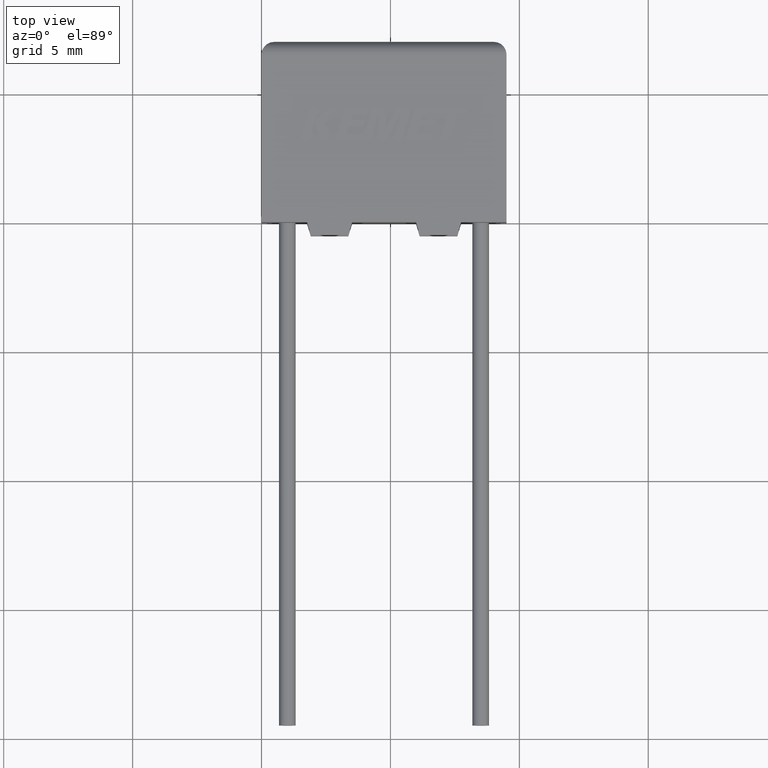
[diagram: clean part render]
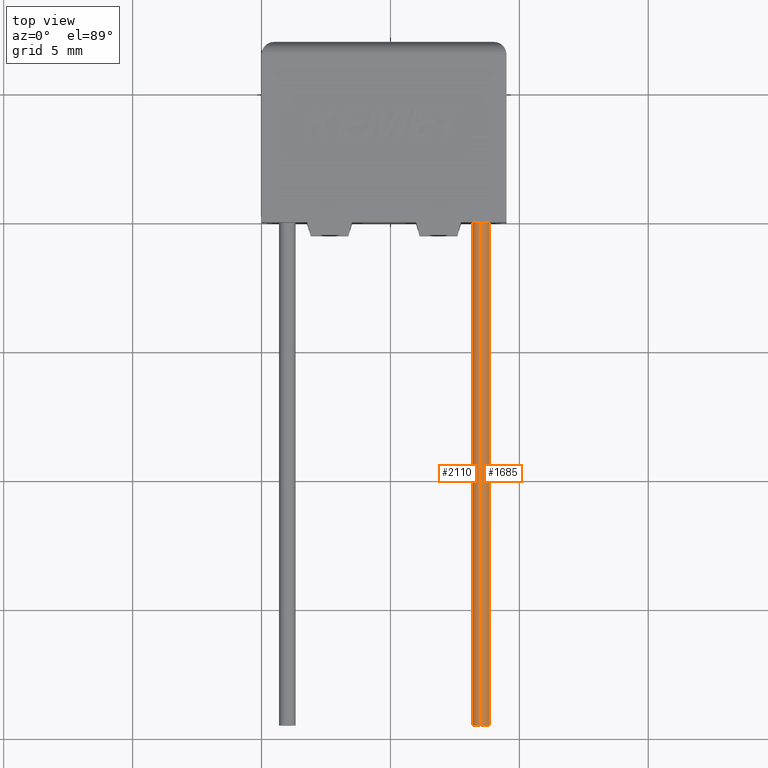
[diagram: same view with one multi-face feature highlighted, each face labeled with its STEP entity id]
A machine part, top view. The highlighted faces form ONE feature: a constant-radius fillet chain: 2 tangent blend faces with common blend radius 0.325 mm. The faces share edges in the B-rep.
Their STEP definitions:
[1] entity #2110 (Cylinder):
#29 = LINE ( 'NONE', #1719, #529 ) ;
#36 = CARTESIAN_POINT ( 'NONE',  ( 8.500000000000000000, -19.50000000000000000, 1.749999999999999800 ) ) ;
#227 = CIRCLE ( 'NONE', #1667, 0.3250000000000000100 ) ;
#430 = ORIENTED_EDGE ( 'NONE', *, *, #955, .F. ) ;
#501 = EDGE_LOOP ( 'NONE', ( #430, #1018, #2680, #746 ) ) ;
#529 = VECTOR ( 'NONE', #1282, 1000.000000000000000 ) ;
#568 = DIRECTION ( 'NONE',  ( 0.0000000000000000000, 0.0000000000000000000, -1.000000000000000000 ) ) ;
#624 = VERTEX_POINT ( 'NONE', #774 ) ;
#710 = VECTOR ( 'NONE', #1493, 1000.000000000000000 ) ;
#746 = ORIENTED_EDGE ( 'NONE', *, *, #2997, .F. ) ;
#774 = CARTESIAN_POINT ( 'NONE',  ( 8.500000000000000000, -19.50000000000000000, 2.074999999999999700 ) ) ;
#797 = DIRECTION ( 'NONE',  ( -0.0000000000000000000, 1.000000000000000000, -0.0000000000000000000 ) ) ;
#814 = DIRECTION ( 'NONE',  ( -0.0000000000000000000, 1.000000000000000000, -0.0000000000000000000 ) ) ;
#955 = EDGE_CURVE ( 'NONE', #1399, #1769, #1572, .T. ) ;
#997 = AXIS2_PLACEMENT_3D ( 'NONE', #1564, #2333, #2794 ) ;
#1018 = ORIENTED_EDGE ( 'NONE', *, *, #1376, .T. ) ;
#1238 = CARTESIAN_POINT ( 'NONE',  ( 8.500000000000000000, -19.50000000000000000, 1.424999999999999800 ) ) ;
#1261 = CARTESIAN_POINT ( 'NONE',  ( 8.500000000000000000, 0.0000000000000000000, 1.424999999999999800 ) ) ;
#1282 = DIRECTION ( 'NONE',  ( -0.0000000000000000000, 1.000000000000000000, -0.0000000000000000000 ) ) ;
#1376 = EDGE_CURVE ( 'NONE', #1399, #624, #2605, .T. ) ;
#1399 = VERTEX_POINT ( 'NONE', #2163 ) ;
#1435 = AXIS2_PLACEMENT_3D ( 'NONE', #36, #797, #1812 ) ;
#1452 = CYLINDRICAL_SURFACE ( 'NONE', #997, 0.3249999999999997900 ) ;
#1491 = VERTEX_POINT ( 'NONE', #2699 ) ;
#1493 = DIRECTION ( 'NONE',  ( -0.0000000000000000000, 1.000000000000000000, -0.0000000000000000000 ) ) ;
#1564 = CARTESIAN_POINT ( 'NONE',  ( 8.500000000000000000, -19.50000000000000000, 1.749999999999999800 ) ) ;
#1572 = LINE ( 'NONE', #1238, #710 ) ;
#1667 = AXIS2_PLACEMENT_3D ( 'NONE', #3052, #814, #568 ) ;
#1719 = CARTESIAN_POINT ( 'NONE',  ( 8.500000000000000000, -19.50000000000000000, 2.074999999999999700 ) ) ;
#1769 = VERTEX_POINT ( 'NONE', #1261 ) ;
#1812 = DIRECTION ( 'NONE',  ( 0.0000000000000000000, 0.0000000000000000000, -1.000000000000000000 ) ) ;
#2110 = ADVANCED_FACE ( 'NONE', ( #2683 ), #1452, .T. ) ;
#2163 = CARTESIAN_POINT ( 'NONE',  ( 8.500000000000000000, -19.50000000000000000, 1.424999999999999800 ) ) ;
#2236 = EDGE_CURVE ( 'NONE', #624, #1491, #29, .T. ) ;
#2333 = DIRECTION ( 'NONE',  ( -0.0000000000000000000, 1.000000000000000000, -0.0000000000000000000 ) ) ;
#2605 = CIRCLE ( 'NONE', #1435, 0.3250000000000000100 ) ;
#2680 = ORIENTED_EDGE ( 'NONE', *, *, #2236, .T. ) ;
#2683 = FACE_OUTER_BOUND ( 'NONE', #501, .T. ) ;
#2699 = CARTESIAN_POINT ( 'NONE',  ( 8.500000000000000000, 0.0000000000000000000, 2.074999999999999700 ) ) ;
#2794 = DIRECTION ( 'NONE',  ( 0.0000000000000000000, 0.0000000000000000000, 1.000000000000000000 ) ) ;
#2997 = EDGE_CURVE ( 'NONE', #1769, #1491, #227, .T. ) ;
#3052 = CARTESIAN_POINT ( 'NONE',  ( 8.500000000000000000, 0.0000000000000000000, 1.749999999999999800 ) ) ;
[2] entity #1685 (Cylinder):
#29 = LINE ( 'NONE', #1719, #529 ) ;
#66 = CIRCLE ( 'NONE', #1725, 0.3250000000000000100 ) ;
#70 = DIRECTION ( 'NONE',  ( 0.0000000000000000000, 0.0000000000000000000, -1.000000000000000000 ) ) ;
#137 = CYLINDRICAL_SURFACE ( 'NONE', #2292, 0.3249999999999997900 ) ;
#209 = FACE_OUTER_BOUND ( 'NONE', #233, .T. ) ;
#233 = EDGE_LOOP ( 'NONE', ( #277, #1231, #2651, #1811 ) ) ;
#277 = ORIENTED_EDGE ( 'NONE', *, *, #3107, .T. ) ;
#529 = VECTOR ( 'NONE', #1282, 1000.000000000000000 ) ;
#624 = VERTEX_POINT ( 'NONE', #774 ) ;
#710 = VECTOR ( 'NONE', #1493, 1000.000000000000000 ) ;
#774 = CARTESIAN_POINT ( 'NONE',  ( 8.500000000000000000, -19.50000000000000000, 2.074999999999999700 ) ) ;
#839 = CARTESIAN_POINT ( 'NONE',  ( 8.500000000000000000, -19.50000000000000000, 1.749999999999999800 ) ) ;
#842 = DIRECTION ( 'NONE',  ( -0.0000000000000000000, 1.000000000000000000, -0.0000000000000000000 ) ) ;
#955 = EDGE_CURVE ( 'NONE', #1399, #1769, #1572, .T. ) ;
#1117 = DIRECTION ( 'NONE',  ( -0.0000000000000000000, 1.000000000000000000, -0.0000000000000000000 ) ) ;
#1231 = ORIENTED_EDGE ( 'NONE', *, *, #955, .T. ) ;
#1238 = CARTESIAN_POINT ( 'NONE',  ( 8.500000000000000000, -19.50000000000000000, 1.424999999999999800 ) ) ;
#1261 = CARTESIAN_POINT ( 'NONE',  ( 8.500000000000000000, 0.0000000000000000000, 1.424999999999999800 ) ) ;
#1282 = DIRECTION ( 'NONE',  ( -0.0000000000000000000, 1.000000000000000000, -0.0000000000000000000 ) ) ;
#1326 = DIRECTION ( 'NONE',  ( 0.0000000000000000000, 0.0000000000000000000, -1.000000000000000000 ) ) ;
#1399 = VERTEX_POINT ( 'NONE', #2163 ) ;
#1407 = CIRCLE ( 'NONE', #2412, 0.3250000000000000100 ) ;
#1491 = VERTEX_POINT ( 'NONE', #2699 ) ;
#1493 = DIRECTION ( 'NONE',  ( -0.0000000000000000000, 1.000000000000000000, -0.0000000000000000000 ) ) ;
#1572 = LINE ( 'NONE', #1238, #710 ) ;
#1685 = ADVANCED_FACE ( 'NONE', ( #209 ), #137, .T. ) ;
#1719 = CARTESIAN_POINT ( 'NONE',  ( 8.500000000000000000, -19.50000000000000000, 2.074999999999999700 ) ) ;
#1725 = AXIS2_PLACEMENT_3D ( 'NONE', #1841, #842, #70 ) ;
#1769 = VERTEX_POINT ( 'NONE', #1261 ) ;
#1811 = ORIENTED_EDGE ( 'NONE', *, *, #2236, .F. ) ;
#1841 = CARTESIAN_POINT ( 'NONE',  ( 8.500000000000000000, -19.50000000000000000, 1.749999999999999800 ) ) ;
#1854 = DIRECTION ( 'NONE',  ( 0.0000000000000000000, 0.0000000000000000000, 1.000000000000000000 ) ) ;
#2163 = CARTESIAN_POINT ( 'NONE',  ( 8.500000000000000000, -19.50000000000000000, 1.424999999999999800 ) ) ;
#2236 = EDGE_CURVE ( 'NONE', #624, #1491, #29, .T. ) ;
#2292 = AXIS2_PLACEMENT_3D ( 'NONE', #839, #1117, #1854 ) ;
#2388 = EDGE_CURVE ( 'NONE', #1491, #1769, #1407, .T. ) ;
#2412 = AXIS2_PLACEMENT_3D ( 'NONE', #2819, #2809, #1326 ) ;
#2651 = ORIENTED_EDGE ( 'NONE', *, *, #2388, .F. ) ;
#2699 = CARTESIAN_POINT ( 'NONE',  ( 8.500000000000000000, 0.0000000000000000000, 2.074999999999999700 ) ) ;
#2809 = DIRECTION ( 'NONE',  ( -0.0000000000000000000, 1.000000000000000000, -0.0000000000000000000 ) ) ;
#2819 = CARTESIAN_POINT ( 'NONE',  ( 8.500000000000000000, 0.0000000000000000000, 1.749999999999999800 ) ) ;
#3107 = EDGE_CURVE ( 'NONE', #624, #1399, #66, .T. ) ;